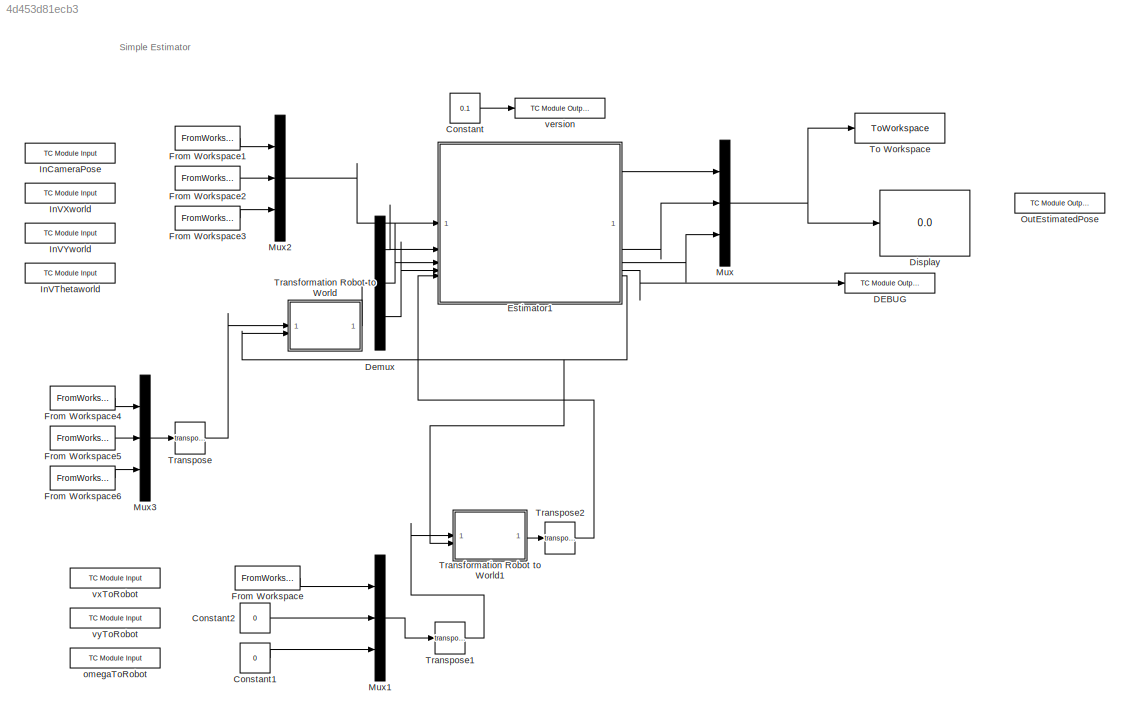
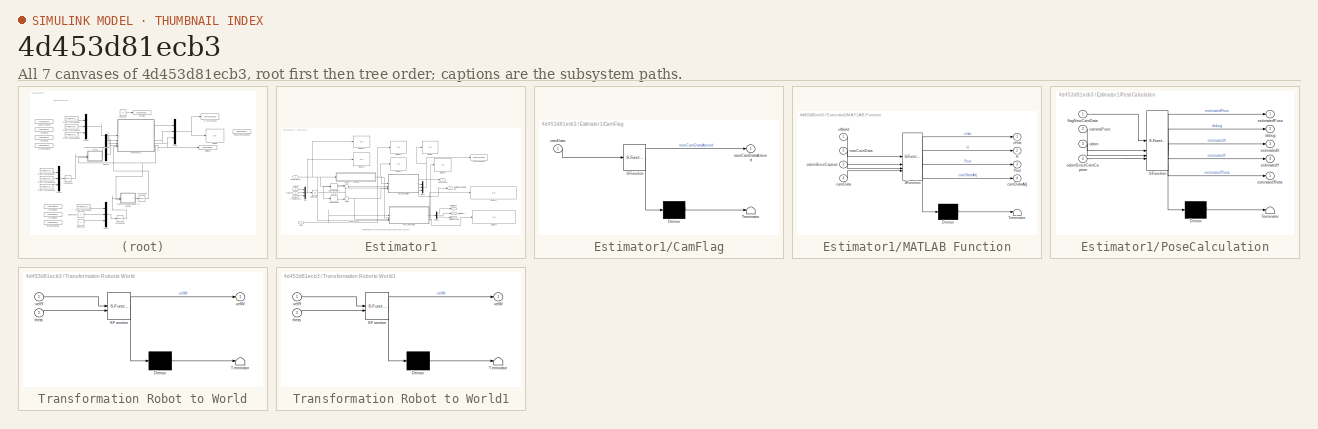
[diagram: thumbnail index - all 7 canvases of the model, root first then tree order]
MODEL slx_4d453d81ecb3
KIND model
CONFIG AbsTol = auto
CONFIG EnableMultiTasking = off
CONFIG FixedStep = 0.01
CONFIG MaxStep = auto
CONFIG MinStep = auto
CONFIG RelTol = 1e-3
CONFIG SampleTimeConstraint = Unconstrained
CONFIG SolverName = ode1
CONFIG StartTime = 0.0
CONFIG StopTime = 10
BLOCK [Constant] Constant
  Commented = on
  Value = 0.1
BLOCK [Constant] Constant1
  Value = 0
BLOCK [Constant] Constant2
  Value = 0
BLOCK [Reference] DEBUG  REF=TcTargetLib/TC Module Output
  Commented = on
  SourceBlock = TcTargetLib/TC Module Output
  SourceType = TC Module Output
BLOCK [Demux] Demux
  Outputs = 3
BLOCK [Display] Display
  Decimation = 1
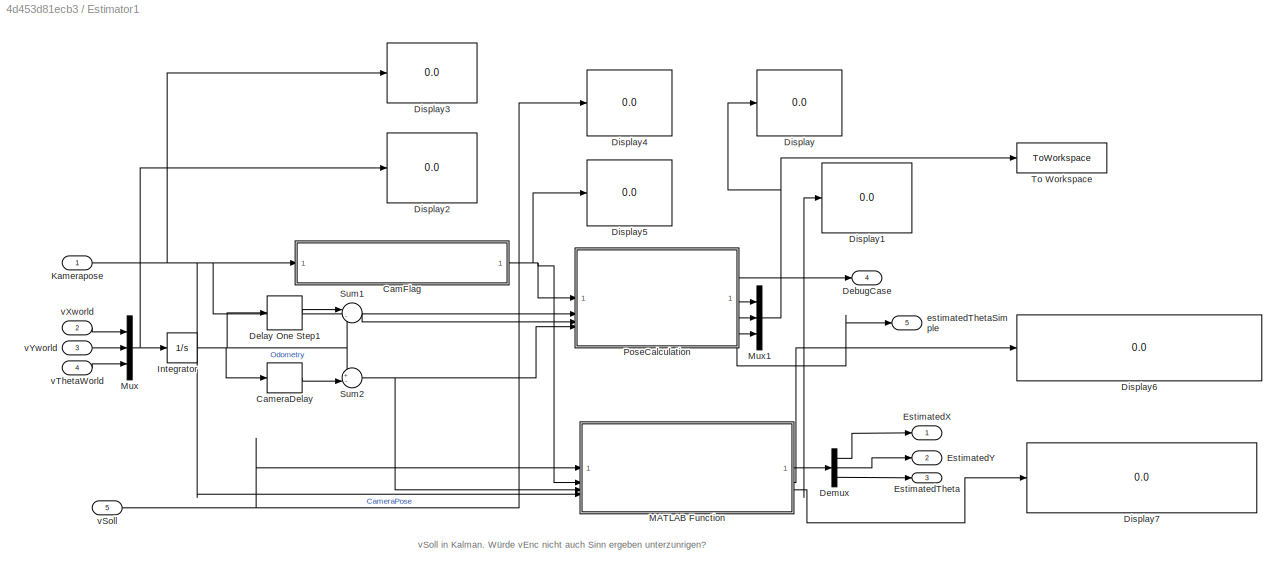
BLOCK [SubSystem] Estimator1
BLOCK [SubSystem] Estimator1/CamFlag
  ErrorFcn = Stateflow.Translate.translate
  NameLocation = top
  PermitHierarchicalResolution = ExplicitOnly
  SFBlockType = MATLAB Function
  TreatAsAtomicUnit = on
BLOCK [Demux] Estimator1/CamFlag/ Demux 
  Outputs = 1
BLOCK [S-Function] Estimator1/CamFlag/ SFunction 
  EnableBusSupport = off
  FunctionName = sf_sfun
  PortCounts = [1 2]
  SFcnIsStateOwnerBlock = off
  SFunctionDeploymentMode = off
  Tag = Stateflow S-Function 4
BLOCK [Terminator] Estimator1/CamFlag/ Terminator 
BLOCK [Inport] Estimator1/CamFlag/camData
BLOCK [Outport] Estimator1/CamFlag/newCamDataArrived
BLOCK [Delay] Estimator1/CameraDelay
  DelayLength = 14
  InputPortMap = u0
BLOCK [Outport] Estimator1/DebugCase
  NameLocation = right
  Port = 4
BLOCK [Delay] Estimator1/Delay One Step1
  DelayLength = 1
  InputPortMap = u0
BLOCK [Demux] Estimator1/Demux
  Outputs = 3
BLOCK [Display] Estimator1/Display
  Decimation = 1
BLOCK [Display] Estimator1/Display1
  Decimation = 1
BLOCK [Display] Estimator1/Display2
  Decimation = 1
BLOCK [Display] Estimator1/Display3
  Decimation = 1
BLOCK [Display] Estimator1/Display4
  Decimation = 1
BLOCK [Display] Estimator1/Display5
  Decimation = 1
BLOCK [Display] Estimator1/Display6
  Decimation = 1
BLOCK [Display] Estimator1/Display7
  Decimation = 1
BLOCK [Outport] Estimator1/EstimatedTheta
  NameLocation = right
  Port = 3
BLOCK [Outport] Estimator1/EstimatedX
  NameLocation = right
BLOCK [Outport] Estimator1/EstimatedY
  NameLocation = right
  Port = 2
BLOCK [Integrator] Estimator1/Integrator
BLOCK [Inport] Estimator1/Kamerapose
BLOCK [SubSystem] Estimator1/MATLAB Function
  ErrorFcn = Stateflow.Translate.translate
  PermitHierarchicalResolution = ExplicitOnly
  SFBlockType = MATLAB Function
  TreatAsAtomicUnit = on
BLOCK [Demux] Estimator1/MATLAB Function/ Demux 
  Outputs = 1
BLOCK [S-Function] Estimator1/MATLAB Function/ SFunction 
  EnableBusSupport = off
  FunctionName = sf_sfun
  PortCounts = [4 5]
  SFcnIsStateOwnerBlock = off
  SFunctionDeploymentMode = off
  Tag = Stateflow S-Function 2
BLOCK [Terminator] Estimator1/MATLAB Function/ Terminator 
BLOCK [Outport] Estimator1/MATLAB Function/H
  Port = 2
BLOCK [Outport] Estimator1/MATLAB Function/Pout
  Port = 3
BLOCK [Inport] Estimator1/MATLAB Function/camData
  Port = 4
BLOCK [Outport] Estimator1/MATLAB Function/camDataAdj
  Port = 4
BLOCK [Inport] Estimator1/MATLAB Function/newCamData
  Port = 2
BLOCK [Inport] Estimator1/MATLAB Function/odomSinceCapture
  Port = 3
BLOCK [Inport] Estimator1/MATLAB Function/vWorld
BLOCK [Outport] Estimator1/MATLAB Function/xHat
BLOCK [Mux] Estimator1/Mux
  DisplayOption = bar
  Inputs = 3
BLOCK [Mux] Estimator1/Mux1
  DisplayOption = bar
  Inputs = 3
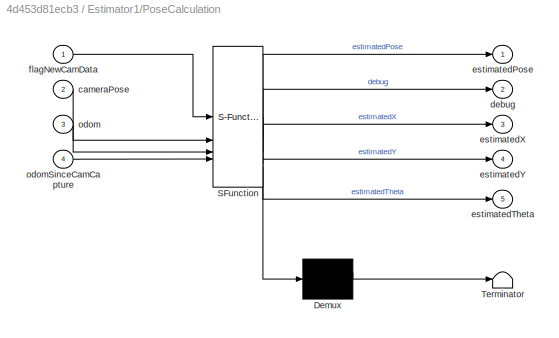
BLOCK [SubSystem] Estimator1/PoseCalculation
  ErrorFcn = Stateflow.Translate.translate
  PermitHierarchicalResolution = ExplicitOnly
  SFBlockType = MATLAB Function
  TreatAsAtomicUnit = on
BLOCK [Demux] Estimator1/PoseCalculation/ Demux 
  Outputs = 1
BLOCK [S-Function] Estimator1/PoseCalculation/ SFunction 
  EnableBusSupport = off
  FunctionName = sf_sfun
  PortCounts = [4 6]
  SFcnIsStateOwnerBlock = off
  SFunctionDeploymentMode = off
  Tag = Stateflow S-Function 5
BLOCK [Terminator] Estimator1/PoseCalculation/ Terminator 
BLOCK [Inport] Estimator1/PoseCalculation/cameraPose
  Port = 2
BLOCK [Outport] Estimator1/PoseCalculation/debug
  Port = 2
BLOCK [Outport] Estimator1/PoseCalculation/estimatedPose
BLOCK [Outport] Estimator1/PoseCalculation/estimatedTheta
  Port = 5
BLOCK [Outport] Estimator1/PoseCalculation/estimatedX
  Port = 3
BLOCK [Outport] Estimator1/PoseCalculation/estimatedY
  Port = 4
BLOCK [Inport] Estimator1/PoseCalculation/flagNewCamData
BLOCK [Inport] Estimator1/PoseCalculation/odom
  Port = 3
BLOCK [Inport] Estimator1/PoseCalculation/odomSinceCamCapture
  Port = 4
BLOCK [Sum] Estimator1/Sum1
  Inputs = |-+
BLOCK [Sum] Estimator1/Sum2
  Inputs = +-|
BLOCK [ToWorkspace] Estimator1/To Workspace
  FixptAsFi = on
  MaxDataPoints = inf
  SampleTime = -1
  SaveFormat = Timeseries
  VariableName = SimpleEst
BLOCK [Outport] Estimator1/estimatedThetaSimple
  Port = 5
BLOCK [Inport] Estimator1/vSoll
  Port = 5
BLOCK [Inport] Estimator1/vThetaWorld
  NameLocation = left
  Port = 4
BLOCK [Inport] Estimator1/vXworld
  NameLocation = left
  Port = 2
BLOCK [Inport] Estimator1/vYworld
  NameLocation = left
  Port = 3
BLOCK [FromWorkspace] From Workspace
  OutputAfterFinalValue = Setting to zero
  SampleTime = 10e-3
  VariableName = [t v]
BLOCK [FromWorkspace] From Workspace1
  OutputAfterFinalValue = Holding final value
  VariableName = [t camX]
BLOCK [FromWorkspace] From Workspace2
  OutputAfterFinalValue = Holding final value
  VariableName = [t camY]
BLOCK [FromWorkspace] From Workspace3
  OutputAfterFinalValue = Holding final value
  VariableName = [t camTheta]
BLOCK [FromWorkspace] From Workspace4
  OutputAfterFinalValue = Setting to zero
  VariableName = [t vXFromMotor1]
BLOCK [FromWorkspace] From Workspace5
  OutputAfterFinalValue = Setting to zero
  VariableName = [t vYFromMotor]
BLOCK [FromWorkspace] From Workspace6
  OutputAfterFinalValue = Setting to zero
  VariableName = [t vThetaFromMotor]
BLOCK [Reference] InCameraPose  REF=TcTargetLib/TC Module Input
  Commented = on
  NameLocation = left
  SourceBlock = TcTargetLib/TC Module Input
  SourceType = TC Module Input
BLOCK [Reference] InVThetaworld  REF=TcTargetLib/TC Module Input
  Commented = on
  NameLocation = left
  SourceBlock = TcTargetLib/TC Module Input
  SourceType = TC Module Input
BLOCK [Reference] InVXworld  REF=TcTargetLib/TC Module Input
  Commented = on
  NameLocation = left
  SourceBlock = TcTargetLib/TC Module Input
  SourceType = TC Module Input
BLOCK [Reference] InVYworld  REF=TcTargetLib/TC Module Input
  Commented = on
  NameLocation = left
  SourceBlock = TcTargetLib/TC Module Input
  SourceType = TC Module Input
BLOCK [Mux] Mux
  DisplayOption = bar
  Inputs = 3
BLOCK [Mux] Mux1
  DisplayOption = bar
  Inputs = 3
BLOCK [Mux] Mux2
  DisplayOption = bar
  Inputs = 3
BLOCK [Mux] Mux3
  DisplayOption = bar
  Inputs = 3
BLOCK [Reference] OutEstimatedPose  REF=TcTargetLib/TC Module Output
  Commented = on
  SourceBlock = TcTargetLib/TC Module Output
  SourceType = TC Module Output
BLOCK [ToWorkspace] To Workspace
  FixptAsFi = on
  MaxDataPoints = inf
  SampleTime = -1
  SaveFormat = Timeseries
  VariableName = EstPose
BLOCK [SubSystem] Transformation Robot to World
  ErrorFcn = Stateflow.Translate.translate
  PermitHierarchicalResolution = ExplicitOnly
  SFBlockType = MATLAB Function
  TreatAsAtomicUnit = on
BLOCK [Demux] Transformation Robot to World/ Demux 
  Outputs = 1
BLOCK [S-Function] Transformation Robot to World/ SFunction 
  EnableBusSupport = off
  FunctionName = sf_sfun
  PortCounts = [2 2]
  SFcnIsStateOwnerBlock = off
  SFunctionDeploymentMode = off
  Tag = Stateflow S-Function 1
BLOCK [Terminator] Transformation Robot to World/ Terminator 
BLOCK [Inport] Transformation Robot to World/theta
  Port = 2
BLOCK [Inport] Transformation Robot to World/velR
BLOCK [Outport] Transformation Robot to World/velW
BLOCK [SubSystem] Transformation Robot to World1
  ErrorFcn = Stateflow.Translate.translate
  PermitHierarchicalResolution = ExplicitOnly
  SFBlockType = MATLAB Function
  TreatAsAtomicUnit = on
BLOCK [Demux] Transformation Robot to World1/ Demux 
  Outputs = 1
BLOCK [S-Function] Transformation Robot to World1/ SFunction 
  EnableBusSupport = off
  FunctionName = sf_sfun
  PortCounts = [2 2]
  SFcnIsStateOwnerBlock = off
  SFunctionDeploymentMode = off
  Tag = Stateflow S-Function 3
BLOCK [Terminator] Transformation Robot to World1/ Terminator 
BLOCK [Inport] Transformation Robot to World1/theta
  Port = 2
BLOCK [Inport] Transformation Robot to World1/velR
BLOCK [Outport] Transformation Robot to World1/velW
BLOCK [Math] Transpose
  Operator = transpose
BLOCK [Math] Transpose1
  Operator = transpose
BLOCK [Math] Transpose2
  Operator = transpose
BLOCK [Reference] omegaToRobot  REF=TcTargetLib/TC Module Input
  Commented = on
  NameLocation = left
  SourceBlock = TcTargetLib/TC Module Input
  SourceType = TC Module Input
BLOCK [Reference] version  REF=TcTargetLib/TC Module Output
  Commented = on
  SourceBlock = TcTargetLib/TC Module Output
  SourceType = TC Module Output
BLOCK [Reference] vxToRobot  REF=TcTargetLib/TC Module Input
  Commented = on
  NameLocation = left
  SourceBlock = TcTargetLib/TC Module Input
  SourceType = TC Module Input
BLOCK [Reference] vyToRobot  REF=TcTargetLib/TC Module Input
  Commented = on
  NameLocation = left
  SourceBlock = TcTargetLib/TC Module Input
  SourceType = TC Module Input
ANNOTATION (root): Simple Estimator
ANNOTATION Estimator1: vSoll in Kalman. Würde vEnc nicht auch Sinn ergeben unterzunrigen?
LINE Constant1:1 -> Mux1:3
LINE Constant2:1 -> Mux1:2
LINE Constant:1 -> version:1
LINE Demux:1 -> Estimator1:2
LINE Demux:2 -> Estimator1:3
LINE Demux:3 -> Estimator1:4
NET Estimator1/CamFlag:1 -> Estimator1/Display5:1, Estimator1/MATLAB Function:2, Estimator1/PoseCalculation:1
LINE Estimator1/CameraDelay:1 -> Estimator1/Sum2:2
LINE Estimator1/Delay One Step1:1 -> Estimator1/Sum1:1
LINE Estimator1/Demux:1 -> Estimator1/EstimatedX:1
LINE Estimator1/Demux:2 -> Estimator1/EstimatedY:1
LINE Estimator1/Demux:3 -> Estimator1/EstimatedTheta:1
NET Estimator1/Integrator:1 -> Estimator1/CameraDelay:1, Estimator1/Delay One Step1:1, Estimator1/Sum1:2, Estimator1/Sum2:1
NET Estimator1/Kamerapose:1 -> Estimator1/CamFlag:1, Estimator1/Display3:1, Estimator1/MATLAB Function:4, Estimator1/PoseCalculation:2
NET Estimator1/MATLAB Function:1 -> Estimator1/Demux:1, Estimator1/Display1:1
LINE Estimator1/MATLAB Function:2 -> Estimator1/Display6:1
LINE Estimator1/MATLAB Function:3 -> Estimator1/Display7:1
NET Estimator1/Mux1:1 -> Estimator1/Display:1, Estimator1/To Workspace:1
NET Estimator1/Mux:1 -> Estimator1/Display2:1, Estimator1/Integrator:1
LINE Estimator1/PoseCalculation:2 -> Estimator1/DebugCase:1
LINE Estimator1/PoseCalculation:3 -> Estimator1/Mux1:1
LINE Estimator1/PoseCalculation:4 -> Estimator1/Mux1:2
NET Estimator1/PoseCalculation:5 -> Estimator1/Mux1:3, Estimator1/estimatedThetaSimple:1
LINE Estimator1/Sum1:1 -> Estimator1/PoseCalculation:3
NET Estimator1/Sum2:1 -> Estimator1/MATLAB Function:3, Estimator1/PoseCalculation:4
NET Estimator1/vSoll:1 -> Estimator1/Display4:1, Estimator1/MATLAB Function:1
LINE Estimator1/vThetaWorld:1 -> Estimator1/Mux:3
LINE Estimator1/vXworld:1 -> Estimator1/Mux:1
LINE Estimator1/vYworld:1 -> Estimator1/Mux:2
LINE Estimator1:1 -> Mux:1
LINE Estimator1:2 -> Mux:2
LINE Estimator1:3 -> Mux:3
LINE Estimator1:4 -> DEBUG:1
NET Estimator1:5 -> Transformation Robot to World1:2, Transformation Robot to World:2
LINE From Workspace1:1 -> Mux2:1
LINE From Workspace2:1 -> Mux2:2
LINE From Workspace3:1 -> Mux2:3
LINE From Workspace4:1 -> Mux3:1
LINE From Workspace5:1 -> Mux3:2
LINE From Workspace6:1 -> Mux3:3
LINE From Workspace:1 -> Mux1:1
LINE Mux1:1 -> Transpose1:1
LINE Mux2:1 -> Estimator1:1
LINE Mux3:1 -> Transpose:1
NET Mux:1 -> Display:1, To Workspace:1
LINE Transformation Robot to World1:1 -> Transpose2:1
LINE Transformation Robot to World:1 -> Demux:1
LINE Transpose1:1 -> Transformation Robot to World1:1
LINE Transpose2:1 -> Estimator1:5
LINE Transpose:1 -> Transformation Robot to World:1
note: NET lines group one-source signal fan-out (src -> all destinations, sorted); 1:1 wires keep LINE
CHART Transformation Robot to World states=1 transitions=1
  STATE_LABEL 'eML_blk_kernel()'
  STATE_LABEL 'SCRIPT:\nfunction velW = fcn(velR, theta)\n    TMat = [cos(theta)    -sin(theta)   0;\n            sin(theta)    cos(theta)    0;\n            0             0             1];\n    velW = velR*transpose(TMat);\nend'
CHART Estimator1/MATLAB Function states=1 transitions=1
  STATE_LABEL 'eML_blk_kernel()'
  STATE_LABEL 'SCRIPT:\nfunction [xHat, H, Pout, camDataAdj]= Kalman(vWorld, newCamData, odomSinceCapture, camData)\n\npersistent xHatOld;\npersistent P;\n\nif isempty(xHatOld)\n    xHatOld = [0; 0; 0];\n    xHat = xHatOld;\nend\n\nif isempty(P)\n    P = zeros(3,3);\nend\ncamDataAdj =[0; 0; 0];\n%% Systemparameter\nA = [1 0 0;\n     0 1 0;\n     0 0 1];\n\ntaskTime = 10e-3; %10ms\n\nB = [taskTime; taskTime; taskTime];\n\n%C = [1 1 1];\n...<+924ch>'
CHART Transformation Robot to World1 states=1 transitions=1
  STATE_LABEL 'eML_blk_kernel()'
  STATE_LABEL 'SCRIPT:\nfunction velW = fcn(velR, theta)\n    TMat = [cos(theta)    -sin(theta)   0;\n            sin(theta)    cos(theta)    0;\n            0             0             1];\n    velW = velR*transpose(TMat);\nend'
CHART Estimator1/CamFlag states=1 transitions=1
  STATE_LABEL 'eML_blk_kernel()'
  STATE_LABEL "SCRIPT:\nfunction newCamDataArrived = fcn(camData)\n\npersistent oldCamData\n\nif isempty(oldCamData)\n    oldCamData = [0 0 0]';\nend\n\nif camData ~= oldCamData %% && all(camData(1:2))   % all() prueft, ob x,y-Koordinate ungleich Null, um ungültige Kamerawerte zu entfernen. Kamerasystem sendet [0 0 0], wenn Fehler in Berechnung. Nur erste beiden Elemente pruefen, da Theta=0 zulaessig.\n    if all(camData(...<+180ch>"
CHART Estimator1/PoseCalculation states=1 transitions=1
  STATE_LABEL 'eML_blk_kernel()'
  STATE_LABEL "SCRIPT:\nfunction [estimatedPose, debug, estimatedX, estimatedY, estimatedTheta]= fcn(flagNewCamData, cameraPose, odom, odomSinceCamCapture)\n\n% Variables\npersistent estPoseOld\n\nif isempty(estPoseOld)\n    estPoseOld = [0 0 0]';\nend\n\n% Case 1: Camera Flag is set (New Cameradata) and CameraData is valid\nif flagNewCamData == 1\n    estimatedPose = cameraPose(1:3) + odomSinceCamCapture;   %OdomSinceCamCa...<+506ch>"
CHART  states=0 transitions=0
CHART  states=0 transitions=0
CHART  states=0 transitions=0
CHART  states=0 transitions=0
CHART  states=0 transitions=0
